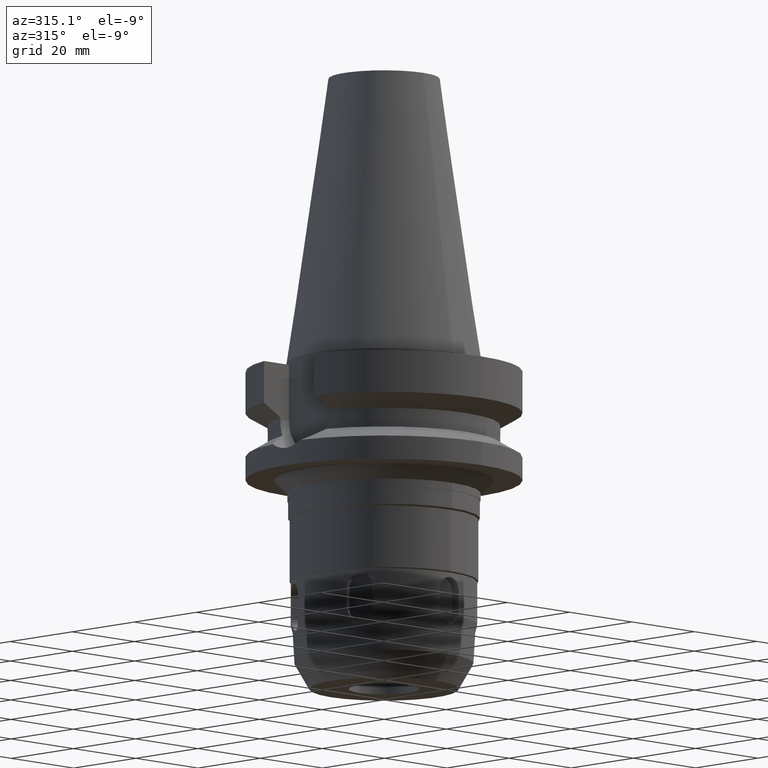
[diagram: clean part render]
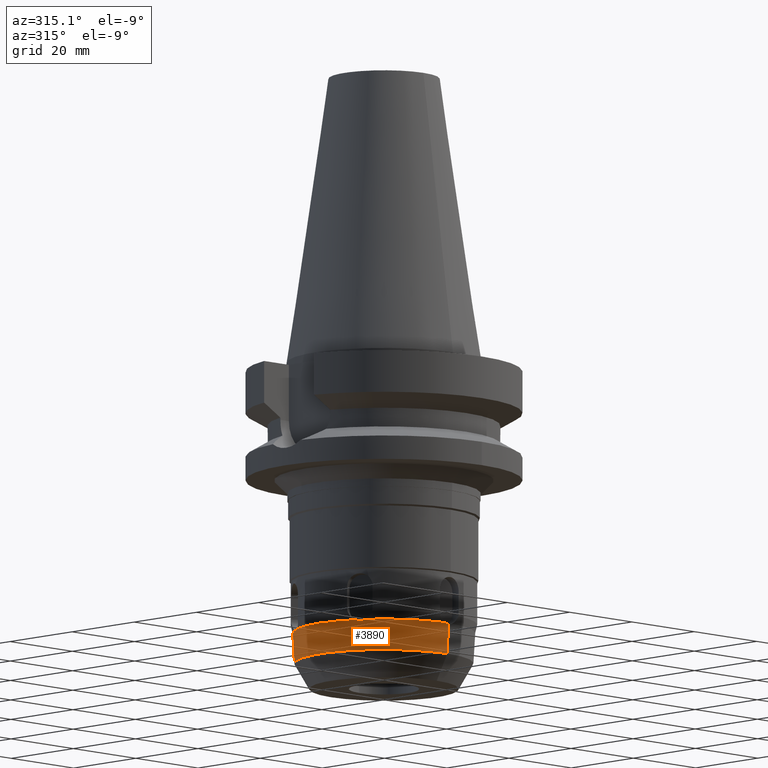
[diagram: same view with one face highlighted and labeled with its STEP entity id]
A machine part, auxiliary view. The second image highlights one B-rep face of the part: STEP entity #3890.
In plain terms, the highlighted conical surface has half-angle 3 deg.
Its self-contained STEP definition (entity closure, byte-faithful):
#1101=CARTESIAN_POINT('',(0.E0,0.E0,-6.216689306166E1));
#1102=DIRECTION('',(0.E0,0.E0,-1.E0));
#1103=DIRECTION('',(-8.926110073709E-1,-4.508276716444E-1,0.E0));
#1104=AXIS2_PLACEMENT_3D('',#1101,#1102,#1103);
#1153=CARTESIAN_POINT('',(0.E0,0.E0,-6.216689306166E1));
#1154=DIRECTION('',(0.E0,0.E0,-1.E0));
#1155=DIRECTION('',(-5.587728731234E-2,-9.984376439030E-1,0.E0));
#1156=AXIS2_PLACEMENT_3D('',#1153,#1154,#1155);
#1259=DIRECTION('',(0.E0,-5.233595624325E-2,-9.986295347546E-1));
#1260=VECTOR('',#1259,6.747246867333E0);
#1261=CARTESIAN_POINT('',(0.E0,2.073755089480E1,-6.24E1));
#1262=LINE('',#1261,#1260);
#1836=CARTESIAN_POINT('',(0.E0,0.E0,-6.216689306166E1));
#1837=DIRECTION('',(0.E0,0.E0,-1.E0));
#1838=DIRECTION('',(-8.367337200585E-1,5.476099722586E-1,0.E0));
#1839=AXIS2_PLACEMENT_3D('',#1836,#1837,#1838);
#1863=CARTESIAN_POINT('',(-1.736203016047E1,1.136277961149E1,
-6.216689306166E1));
#1864=CARTESIAN_POINT('',(-1.742668323112E1,1.125909395146E1,
-6.221806670669E1));
#1865=CARTESIAN_POINT('',(-1.755851507124E1,1.104545614840E1,
-6.230418449945E1));
#1866=CARTESIAN_POINT('',(-1.775963926226E1,1.071125856550E1,
-6.238252880325E1));
#1867=CARTESIAN_POINT('',(-1.789319863585E1,1.048317264239E1,-6.24E1));
#1868=CARTESIAN_POINT('',(-1.795924588717E1,1.036877544740E1,-6.24E1));
#1873=CARTESIAN_POINT('',(-1.795924588717E1,1.036877544740E1,-6.24E1));
#1874=CARTESIAN_POINT('',(-1.802530347299E1,1.025436035253E1,-6.24E1));
#1875=CARTESIAN_POINT('',(-1.815606518587E1,1.002462767332E1,
-6.238252308138E1));
#1876=CARTESIAN_POINT('',(-1.834492165424E1,9.683357905224E0,
-6.230417292545E1));
#1877=CARTESIAN_POINT('',(-1.846401048234E1,9.462389368211E0,
-6.221806004487E1));
#1878=CARTESIAN_POINT('',(-1.852147088140E1,9.354569374495E0,
-6.216689306166E1));
#1883=CARTESIAN_POINT('',(-1.852147088140E1,-9.354569374495E0,
-6.216689306166E1));
#1884=CARTESIAN_POINT('',(-1.846400300114E1,-9.462403406110E0,
-6.221806670668E1));
#1885=CARTESIAN_POINT('',(-1.834490315654E1,-9.683392030186E0,
-6.230418449944E1));
#1886=CARTESIAN_POINT('',(-1.815604165539E1,-1.002466948037E1,
-6.238252880325E1));
#1887=CARTESIAN_POINT('',(-1.802529313851E1,-1.025437825238E1,-6.24E1));
#1888=CARTESIAN_POINT('',(-1.795924588717E1,-1.036877544740E1,-6.24E1));
#1893=CARTESIAN_POINT('',(-1.795924588717E1,-1.036877544740E1,-6.24E1));
#1894=CARTESIAN_POINT('',(-1.789318831198E1,-1.048319052385E1,-6.24E1));
#1895=CARTESIAN_POINT('',(-1.775961484672E1,-1.071129980446E1,
-6.238252308701E1));
#1896=CARTESIAN_POINT('',(-1.755849479196E1,-1.104548918959E1,
-6.230417293938E1));
#1897=CARTESIAN_POINT('',(-1.742667482492E1,-1.125910743269E1,
-6.221806005308E1));
#1898=CARTESIAN_POINT('',(-1.736203016047E1,-1.136277961149E1,
-6.216689306166E1));
#1903=CARTESIAN_POINT('',(-1.159440720921E0,-2.071734898599E1,
-6.216689306166E1));
#1904=CARTESIAN_POINT('',(-1.037313272074E0,-2.072149757832E1,
-6.221806942959E1));
#1905=CARTESIAN_POINT('',(-7.863722263230E-1,-2.072884859456E1,
-6.230418921992E1));
#1906=CARTESIAN_POINT('',(-3.963830660915E-1,-2.073592825962E1,
-6.238253110034E1));
#1907=CARTESIAN_POINT('',(-1.320861771166E-1,-2.073755089480E1,-6.24E1));
#1908=CARTESIAN_POINT('',(-5.080946550754E-14,-2.073755089480E1,-6.24E1));
#1913=DIRECTION('',(0.E0,5.233595624325E-2,-9.986295347546E-1));
#1914=VECTOR('',#1913,6.747246867333E0);
#1915=CARTESIAN_POINT('',(-5.080946550754E-14,-2.073755089480E1,-6.24E1));
#1916=LINE('',#1915,#1914);
#1920=CARTESIAN_POINT('',(0.E0,0.E0,-6.9138E1));
#1921=DIRECTION('',(0.E0,0.E0,-1.E0));
#1922=DIRECTION('',(0.E0,-1.E0,0.E0));
#1923=AXIS2_PLACEMENT_3D('',#1920,#1921,#1922);
#1928=CARTESIAN_POINT('',(0.E0,2.073755089480E1,-6.24E1));
#1929=CARTESIAN_POINT('',(-1.320863007053E-1,2.073755089480E1,-6.24E1));
#1930=CARTESIAN_POINT('',(-3.963833097731E-1,2.073592824985E1,
-6.238253098608E1));
#1931=CARTESIAN_POINT('',(-7.863700053364E-1,2.072884864471E1,
-6.230418977703E1));
#1932=CARTESIAN_POINT('',(-1.037312357865E0,2.072149760938E1,
-6.221806981268E1));
#1933=CARTESIAN_POINT('',(-1.159440720921E0,2.071734898599E1,
-6.216689306166E1));
#2344=CARTESIAN_POINT('',(0.E0,2.038442727799E1,-6.9138E1));
#2345=VERTEX_POINT('',#2344);
#2346=CARTESIAN_POINT('',(-3.870638917436E-14,-2.038442727799E1,-6.9138E1));
#2347=VERTEX_POINT('',#2346);
#2348=VERTEX_POINT('',#1873);
#2349=VERTEX_POINT('',#1878);
#2350=VERTEX_POINT('',#1863);
#2351=CARTESIAN_POINT('',(-1.852147088140E1,-9.354569374497E0,
-6.216689306166E1));
#2352=VERTEX_POINT('',#2351);
#2353=VERTEX_POINT('',#1893);
#2354=VERTEX_POINT('',#1898);
#2355=CARTESIAN_POINT('',(-1.159440720920E0,-2.071734898599E1,
-6.216689306166E1));
#2356=VERTEX_POINT('',#2355);
#2357=VERTEX_POINT('',#1908);
#2358=CARTESIAN_POINT('',(0.E0,2.073755089480E1,-6.24E1));
#2359=VERTEX_POINT('',#2358);
#2360=VERTEX_POINT('',#1933);
#3870=CARTESIAN_POINT('',(0.E0,0.E0,-6.565244653083E1));
#3871=DIRECTION('',(0.E0,0.E0,1.E0));
#3872=DIRECTION('',(0.E0,1.E0,0.E0));
#3873=AXIS2_PLACEMENT_3D('',#3870,#3871,#3872);
#3874=CONICAL_SURFACE('',#3873,2.056709739488E1,3.E0);
#3875=ORIENTED_EDGE('',*,*,#3338,.T.);
#3876=ORIENTED_EDGE('',*,*,#3336,.T.);
#3877=ORIENTED_EDGE('',*,*,#3363,.F.);
#3878=ORIENTED_EDGE('',*,*,#3377,.T.);
#3879=ORIENTED_EDGE('',*,*,#3375,.T.);
#3880=ORIENTED_EDGE('',*,*,#3402,.F.);
#3881=ORIENTED_EDGE('',*,*,#3414,.T.);
#3882=ORIENTED_EDGE('',*,*,#3459,.T.);
#3884=ORIENTED_EDGE('',*,*,#3883,.T.);
#3885=ORIENTED_EDGE('',*,*,#3455,.F.);
#3886=ORIENTED_EDGE('',*,*,#3638,.T.);
#3887=ORIENTED_EDGE('',*,*,#3863,.F.);
#3888=EDGE_LOOP('',(#3875,#3876,#3877,#3878,#3879,#3880,#3881,#3882,#3884,#3885,
#3886,#3887));
#3889=FACE_OUTER_BOUND('',#3888,.F.);
#1105=CIRCLE('',#1104,2.074976751178E1);
#1157=CIRCLE('',#1156,2.074976751178E1);
#1840=CIRCLE('',#1839,2.074976751178E1);
#1869=B_SPLINE_CURVE_WITH_KNOTS('',3,(#1863,#1864,#1865,#1866,#1867,#1868),
.UNSPECIFIED.,.F.,.F.,(4,1,1,4),(0.E0,3.333333333333E-1,6.666666666667E-1,1.E0),
.UNSPECIFIED.);
#1879=B_SPLINE_CURVE_WITH_KNOTS('',3,(#1873,#1874,#1875,#1876,#1877,#1878),
.UNSPECIFIED.,.F.,.F.,(4,1,1,4),(0.E0,3.333333333333E-1,6.666666666667E-1,1.E0),
.UNSPECIFIED.);
#1889=B_SPLINE_CURVE_WITH_KNOTS('',3,(#1883,#1884,#1885,#1886,#1887,#1888),
.UNSPECIFIED.,.F.,.F.,(4,1,1,4),(0.E0,3.333333333333E-1,6.666666666667E-1,1.E0),
.UNSPECIFIED.);
#1899=B_SPLINE_CURVE_WITH_KNOTS('',3,(#1893,#1894,#1895,#1896,#1897,#1898),
.UNSPECIFIED.,.F.,.F.,(4,1,1,4),(0.E0,3.333333333333E-1,6.666666666667E-1,1.E0),
.UNSPECIFIED.);
#1909=B_SPLINE_CURVE_WITH_KNOTS('',3,(#1903,#1904,#1905,#1906,#1907,#1908),
.UNSPECIFIED.,.F.,.F.,(4,1,1,4),(0.E0,3.333333333333E-1,6.666666666667E-1,1.E0),
.UNSPECIFIED.);
#1924=CIRCLE('',#1923,2.038442727799E1);
#1934=B_SPLINE_CURVE_WITH_KNOTS('',3,(#1928,#1929,#1930,#1931,#1932,#1933),
.UNSPECIFIED.,.F.,.F.,(4,1,1,4),(0.E0,3.333333333333E-1,6.666666666667E-1,1.E0),
.UNSPECIFIED.);
#3336=EDGE_CURVE('',#2348,#2349,#1879,.T.);
#3338=EDGE_CURVE('',#2350,#2348,#1869,.T.);
#3363=EDGE_CURVE('',#2352,#2349,#1105,.T.);
#3375=EDGE_CURVE('',#2353,#2354,#1899,.T.);
#3377=EDGE_CURVE('',#2352,#2353,#1889,.T.);
#3402=EDGE_CURVE('',#2356,#2354,#1157,.T.);
#3414=EDGE_CURVE('',#2356,#2357,#1909,.T.);
#3455=EDGE_CURVE('',#2359,#2345,#1262,.T.);
#3459=EDGE_CURVE('',#2357,#2347,#1916,.T.);
#3638=EDGE_CURVE('',#2359,#2360,#1934,.T.);
#3863=EDGE_CURVE('',#2350,#2360,#1840,.T.);
#3883=EDGE_CURVE('',#2347,#2345,#1924,.T.);
#3890=ADVANCED_FACE('',(#3889),#3874,.T.);